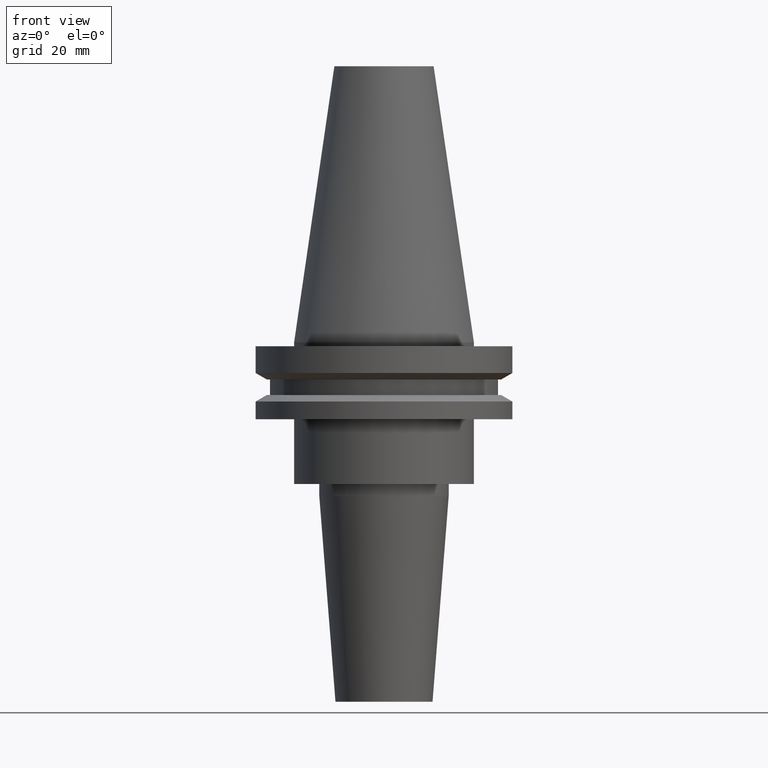
[diagram: clean part render]
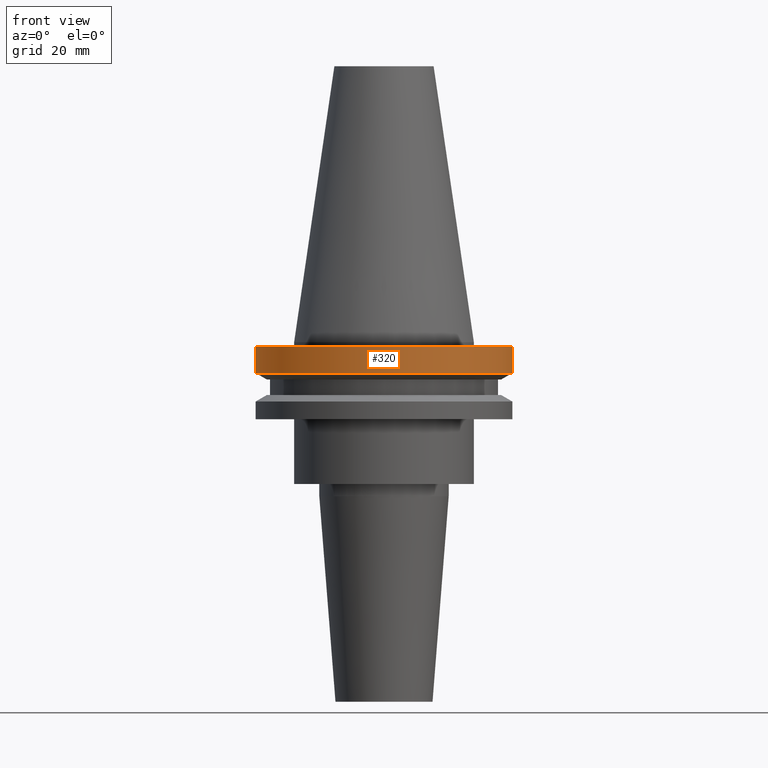
[diagram: same view with one face highlighted and labeled with its STEP entity id]
A machine part, front view. The second image highlights one B-rep face of the part: STEP entity #320.
In plain terms, the highlighted cylindrical surface (partial cylindrical patch) has radius 31.75 mm, axis along (-0, -0, 1).
Its self-contained STEP definition (entity closure, byte-faithful):
#5 = EDGE_CURVE ( 'NONE', #88, #25, #452, .T. ) ;
#9 = AXIS2_PLACEMENT_3D ( 'NONE', #198, #134, #456 ) ;
#25 = VERTEX_POINT ( 'NONE', #770 ) ;
#88 = VERTEX_POINT ( 'NONE', #516 ) ;
#89 = LINE ( 'NONE', #801, #119 ) ;
#114 = ORIENTED_EDGE ( 'NONE', *, *, #398, .T. ) ;
#119 = VECTOR ( 'NONE', #280, 1000.000000000000000 ) ;
#134 = DIRECTION ( 'NONE',  ( -0.000000000000000000, -0.000000000000000000, 1.000000000000000000 ) ) ;
#135 = VERTEX_POINT ( 'NONE', #631 ) ;
#148 = AXIS2_PLACEMENT_3D ( 'NONE', #567, #248, #438 ) ;
#149 = CIRCLE ( 'NONE', #148, 31.75000000000000000 ) ;
#181 = DIRECTION ( 'NONE',  ( -0.000000000000000000, -0.000000000000000000, 1.000000000000000000 ) ) ;
#198 = CARTESIAN_POINT ( 'NONE',  ( 0.000000000000000000, 0.000000000000000000, 68.25000000000000000 ) ) ;
#225 = FACE_OUTER_BOUND ( 'NONE', #311, .T. ) ;
#248 = DIRECTION ( 'NONE',  ( -0.000000000000000000, -0.000000000000000000, 1.000000000000000000 ) ) ;
#280 = DIRECTION ( 'NONE',  ( -0.000000000000000000, -0.000000000000000000, 1.000000000000000000 ) ) ;
#310 = CARTESIAN_POINT ( 'NONE',  ( 31.75000000000000000, 0.000000000000000000, 68.25000000000000000 ) ) ;
#311 = EDGE_LOOP ( 'NONE', ( #612, #114, #408, #426 ) ) ;
#320 = ADVANCED_FACE ( 'NONE', ( #225 ), #346, .T. ) ;
#346 = CYLINDRICAL_SURFACE ( 'NONE', #9, 31.75000000000000000 ) ;
#383 = CARTESIAN_POINT ( 'NONE',  ( 0.000000000000000000, 0.000000000000000000, -1.000000000000000888 ) ) ;
#398 = EDGE_CURVE ( 'NONE', #802, #88, #149, .T. ) ;
#408 = ORIENTED_EDGE ( 'NONE', *, *, #5, .T. ) ;
#426 = ORIENTED_EDGE ( 'NONE', *, *, #568, .F. ) ;
#438 = DIRECTION ( 'NONE',  ( 1.000000000000000000, 0.000000000000000000, 0.000000000000000000 ) ) ;
#449 = AXIS2_PLACEMENT_3D ( 'NONE', #383, #181, #511 ) ;
#452 = LINE ( 'NONE', #310, #729 ) ;
#456 = DIRECTION ( 'NONE',  ( 1.000000000000000000, 0.000000000000000000, 0.000000000000000000 ) ) ;
#476 = CIRCLE ( 'NONE', #449, 31.75000000000000000 ) ;
#511 = DIRECTION ( 'NONE',  ( 1.000000000000000000, 0.000000000000000000, 0.000000000000000000 ) ) ;
#516 = CARTESIAN_POINT ( 'NONE',  ( 31.75000000000000000, 0.000000000000000000, -7.605276606597335842 ) ) ;
#567 = CARTESIAN_POINT ( 'NONE',  ( 0.000000000000000000, 0.000000000000000000, -7.605276606597335842 ) ) ;
#568 = EDGE_CURVE ( 'NONE', #135, #25, #476, .T. ) ;
#574 = DIRECTION ( 'NONE',  ( -0.000000000000000000, -0.000000000000000000, 1.000000000000000000 ) ) ;
#612 = ORIENTED_EDGE ( 'NONE', *, *, #730, .F. ) ;
#631 = CARTESIAN_POINT ( 'NONE',  ( -31.75000000000000000, 3.888253587292846476E-15, -1.000000000000000888 ) ) ;
#729 = VECTOR ( 'NONE', #574, 1000.000000000000000 ) ;
#730 = EDGE_CURVE ( 'NONE', #802, #135, #89, .T. ) ;
#770 = CARTESIAN_POINT ( 'NONE',  ( 31.75000000000000000, 0.000000000000000000, -1.000000000000000888 ) ) ;
#801 = CARTESIAN_POINT ( 'NONE',  ( -31.75000000000000000, 3.888253587292846476E-15, 68.25000000000000000 ) ) ;
#802 = VERTEX_POINT ( 'NONE', #832 ) ;
#832 = CARTESIAN_POINT ( 'NONE',  ( -31.75000000000000000, 3.888253587292846476E-15, -7.605276606597335842 ) ) ;